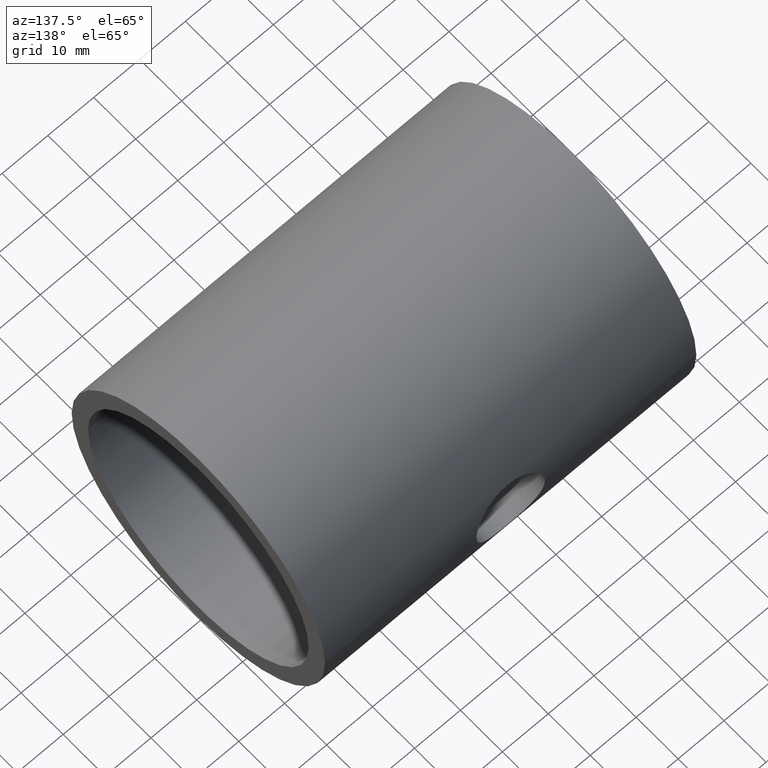
[diagram: clean part render]
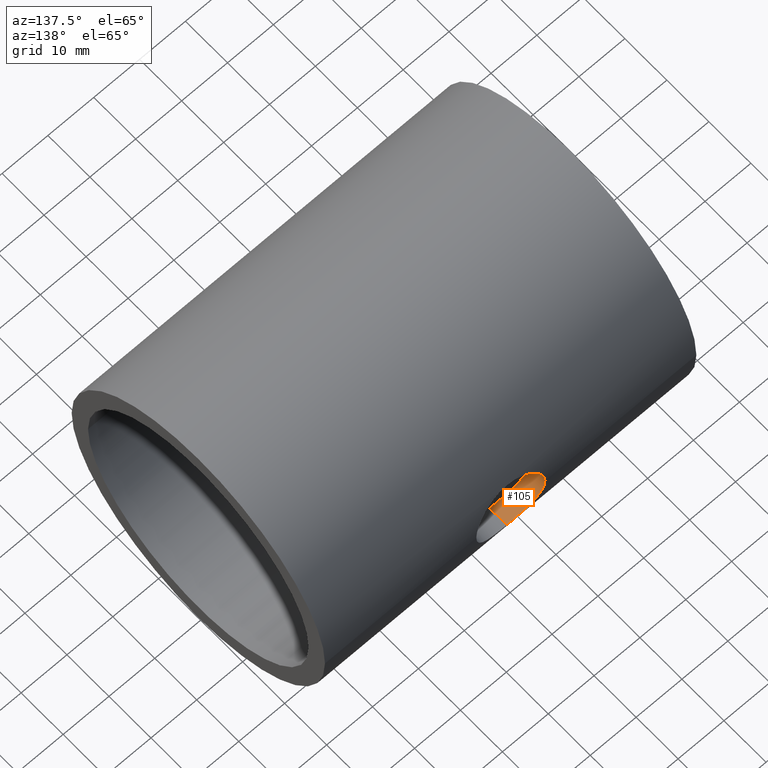
[diagram: same view with one face highlighted and labeled with its STEP entity id]
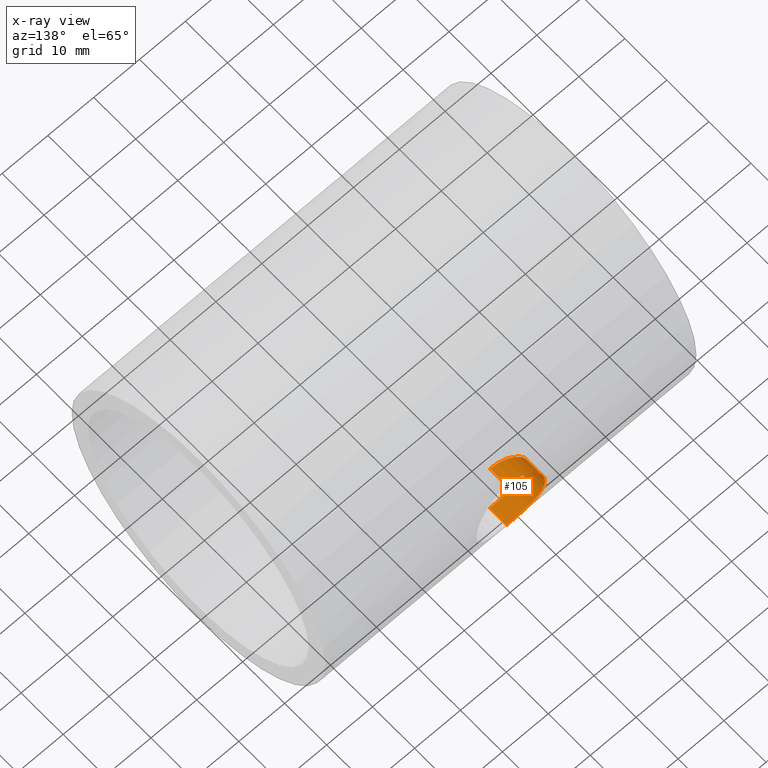
[diagram: x-ray of the same camera — body ghosted, the highlighted face saturated]
A machine part, auxiliary view. The second image highlights one B-rep face of the part: STEP entity #105.
The next image is the same camera in x-ray: the body ghosted, the highlighted face saturated — about 0% of this face is hidden behind the body in this view.
In plain terms, the highlighted cylindrical surface (partial cylindrical patch) has radius 7.5 mm, axis along (0, -1, 0).
Its self-contained STEP definition (entity closure, byte-faithful):
#2 = CARTESIAN_POINT ( 'NONE',  ( -4.579903335156499722, 25.56608613179639633, -5.959639453293601896 ) ) ;
#7 = CARTESIAN_POINT ( 'NONE',  ( -3.758825390325387428, 29.44040599668011282, -6.508684677632751381 ) ) ;
#9 = EDGE_CURVE ( 'NONE', #326, #66, #321, .T. ) ;
#18 = LINE ( 'NONE', #423, #86 ) ;
#22 = CARTESIAN_POINT ( 'NONE',  ( -7.500000000000000000, 30.14999999999999858, 6.235175805712512231E-16 ) ) ;
#24 = CARTESIAN_POINT ( 'NONE',  ( -7.500000000000004441, 30.15000000000000213, 0.4977798491282845461 ) ) ;
#26 = CARTESIAN_POINT ( 'NONE',  ( -7.019421004381487528, 30.03391983532719678, 2.652946144464616740 ) ) ;
#28 = VERTEX_POINT ( 'NONE', #253 ) ;
#31 = CARTESIAN_POINT ( 'NONE',  ( 9.184851921108029881E-16, 25.15576474687263797, 7.500000000000000000 ) ) ;
#32 = B_SPLINE_CURVE_WITH_KNOTS ( 'NONE', 3,
 ( #268, #24, #182, #64, #419, #189, #26, #514, #147, #230, #386, #137, #460, #507, #303, #340, #280, #190, #311, #37, #347, #437, #78, #239 ),
 .UNSPECIFIED., .F., .F.,
 ( 4, 2, 2, 2, 2, 2, 2, 2, 2, 2, 2, 4 ),
 ( 6.055894841786311079E-19, 0.001471713851614921088, 0.002207570777422380656, 0.002943427703229840008, 0.004415141554844758710, 0.005150998480652219796, 0.005886855406459680015, 0.007358569258074600453, 0.008830283109689519155, 0.009566140035496977639, 0.01030199696130443612, 0.01177371081291935309 ),
 .UNSPECIFIED. ) ;
#35 = CARTESIAN_POINT ( 'NONE',  ( -0.4922419818676975201, 25.15576474687263442, 7.499999999999996447 ) ) ;
#36 = CARTESIAN_POINT ( 'NONE',  ( -0.9827970735371619471, 25.17034453724676624, -7.451596438295246649 ) ) ;
#37 = CARTESIAN_POINT ( 'NONE',  ( -1.948475690276917360, 29.26625992275815236, 7.246652333023240189 ) ) ;
#47 = CARTESIAN_POINT ( 'NONE',  ( -4.570604388502558457, 29.55720114824842781, -5.951416819226710508 ) ) ;
#60 = CARTESIAN_POINT ( 'NONE',  ( -6.095169833071157228, 29.83128716922219681, -4.377141417540606483 ) ) ;
#64 = CARTESIAN_POINT ( 'NONE',  ( -7.307030583747838648, 30.10254195543210898, 1.708038133804885339 ) ) ;
#65 = CARTESIAN_POINT ( 'NONE',  ( -7.500000000000002665, 26.25000000000000711, 0.4984821498441855403 ) ) ;
#66 = VERTEX_POINT ( 'NONE', #179 ) ;
#71 = CARTESIAN_POINT ( 'NONE',  ( -3.327989891935563271, 25.37099409258889082, 6.738906710336570072 ) ) ;
#74 = CARTESIAN_POINT ( 'NONE',  ( -5.948072239823869012, 25.84896697505297425, -4.574973492457397484 ) ) ;
#78 = CARTESIAN_POINT ( 'NONE',  ( -0.4914981277863440523, 29.20226874747919510, 7.499999999999998224 ) ) ;
#81 = DIRECTION ( 'NONE',  ( 0.000000000000000000, -1.000000000000000000, 0.000000000000000000 ) ) ;
#85 = CARTESIAN_POINT ( 'NONE',  ( -1.945518420329401588, 29.26305329673580502, -7.259888212938143681 ) ) ;
#86 = VECTOR ( 'NONE', #470, 1000.000000000000000 ) ;
#89 = CARTESIAN_POINT ( 'NONE',  ( -2.709782837249907731E-15, 29.20226874747919510, -7.500000000000001776 ) ) ;
#93 = CARTESIAN_POINT ( 'NONE',  ( -7.500000000000000000, 26.25000000000000000, -2.472637286832563698E-17 ) ) ;
#105 = ADVANCED_FACE ( 'NONE', ( #372 ), #446, .F. ) ;
#113 = ORIENTED_EDGE ( 'NONE', *, *, #135, .T. ) ;
#115 = CARTESIAN_POINT ( 'NONE',  ( -2.651657080710897230, 25.29414193850076131, 7.019851125143388160 ) ) ;
#117 = CARTESIAN_POINT ( 'NONE',  ( -0.9808088379908341814, 25.17022427966362486, 7.452009104841418541 ) ) ;
#119 = CARTESIAN_POINT ( 'NONE',  ( -7.018475470088969104, 26.11633987092977449, 2.655443974424664066 ) ) ;
#120 = ORIENTED_EDGE ( 'NONE', *, *, #158, .F. ) ;
#123 = VECTOR ( 'NONE', #81, 1000.000000000000000 ) ;
#124 = LINE ( 'NONE', #284, #123 ) ;
#131 = DIRECTION ( 'NONE',  ( 0.000000000000000000, 0.000000000000000000, -1.000000000000000000 ) ) ;
#135 = EDGE_CURVE ( 'NONE', #28, #315, #517, .T. ) ;
#136 = ORIENTED_EDGE ( 'NONE', *, *, #272, .F. ) ;
#137 = CARTESIAN_POINT ( 'NONE',  ( -5.637319221159425631, 29.74102230381066647, 4.952887269354030231 ) ) ;
#147 = CARTESIAN_POINT ( 'NONE',  ( -6.505634617147438625, 29.91696588354454533, 3.763845714519531871 ) ) ;
#151 = CARTESIAN_POINT ( 'NONE',  ( -1.950174968047167612, 25.23015299990416338, 7.246202063215121392 ) ) ;
#154 = CARTESIAN_POINT ( 'NONE',  ( -4.579823838683608983, 25.56606953501224311, 5.959714509959599837 ) ) ;
#155 = CARTESIAN_POINT ( 'NONE',  ( -2.421181315831954617, 25.27091214638346983, -7.102753916822598157 ) ) ;
#158 = EDGE_CURVE ( 'NONE', #28, #326, #18, .T. ) ;
#160 = ORIENTED_EDGE ( 'NONE', *, *, #427, .T. ) ;
#161 = CARTESIAN_POINT ( 'NONE',  ( -5.472392848530915899, 25.74356638495870797, 5.134404946341746268 ) ) ;
#163 = CARTESIAN_POINT ( 'NONE',  ( -7.257774706203148796, 26.18165786326593292, -1.953695245823923399 ) ) ;
#165 = CARTESIAN_POINT ( 'NONE',  ( -6.095777443094966053, 25.88345997311688151, -4.376244098658888859 ) ) ;
#179 = CARTESIAN_POINT ( 'NONE',  ( -7.500000000000000000, 26.25000000000000000, -2.472637286832563698E-17 ) ) ;
#180 = CARTESIAN_POINT ( 'NONE',  ( -0.4945814229491364289, 29.20226874747919155, -7.500000000000000000 ) ) ;
#182 = CARTESIAN_POINT ( 'NONE',  ( -7.450937842631350172, 30.13768935472081267, 0.9868566961194560339 ) ) ;
#183 = AXIS2_PLACEMENT_3D ( 'NONE', #458, #449, #131 ) ;
#189 = CARTESIAN_POINT ( 'NONE',  ( -7.103575669927350233, 30.05375883820808980, 2.418709507118506519 ) ) ;
#190 = CARTESIAN_POINT ( 'NONE',  ( -2.649571510705720723, 29.32136355497509683, 7.020640179147966897 ) ) ;
#192 = CARTESIAN_POINT ( 'NONE',  ( -1.708101661654081838, 25.21252738946488492, 7.307085269263294158 ) ) ;
#197 = CARTESIAN_POINT ( 'NONE',  ( -6.735174713920692113, 26.04115818748732636, 3.336007205501596573 ) ) ;
#198 = CARTESIAN_POINT ( 'NONE',  ( -2.652376838847326557, 25.29421346542874005, -7.019596699871498480 ) ) ;
#201 = CARTESIAN_POINT ( 'NONE',  ( -7.111477267143985870, 26.14101493566436929, -2.432393457438694728 ) ) ;
#204 = CARTESIAN_POINT ( 'NONE',  ( -0.4943570307307177392, 25.15576474687263797, -7.499999999999995559 ) ) ;
#211 = CARTESIAN_POINT ( 'NONE',  ( -4.948539832694137885, 29.61799726040874603, -5.641076152350087192 ) ) ;
#217 = CARTESIAN_POINT ( 'NONE',  ( 9.184851921108029881E-16, 25.15576474687263797, 7.500000000000000000 ) ) ;
#220 = CARTESIAN_POINT ( 'NONE',  ( -7.500000000000002665, 30.15000000000000924, -0.4974136404906663866 ) ) ;
#225 = CARTESIAN_POINT ( 'NONE',  ( -7.450995790178253309, 30.13770158883242800, -0.9876561040943162562 ) ) ;
#230 = CARTESIAN_POINT ( 'NONE',  ( -6.097133101349402118, 29.83169117787166869, 4.374348183222612541 ) ) ;
#239 = CARTESIAN_POINT ( 'NONE',  ( 9.184852138581204232E-16, 29.20226874747919510, 7.500000000000000000 ) ) ;
#240 = CARTESIAN_POINT ( 'NONE',  ( -6.504666169006426024, 25.98178539182808677, -3.765551515641766489 ) ) ;
#242 = CARTESIAN_POINT ( 'NONE',  ( -3.760778865241900970, 25.43211951867764498, -6.507638534782119955 ) ) ;
#243 = VERTEX_POINT ( 'NONE', #426 ) ;
#247 = CARTESIAN_POINT ( 'NONE',  ( -2.424035186337260228, 29.29924850759149280, -7.114334325466603381 ) ) ;
#253 = CARTESIAN_POINT ( 'NONE',  ( -2.709782837249907731E-15, 29.20226874747919510, -7.500000000000001776 ) ) ;
#260 = CARTESIAN_POINT ( 'NONE',  ( -6.505593367890553758, 29.91694570946075515, -3.764187038947270914 ) ) ;
#261 = CARTESIAN_POINT ( 'NONE',  ( -6.735889782773024415, 29.96850493715256647, -3.334172780592237206 ) ) ;
#266 = EDGE_CURVE ( 'NONE', #315, #243, #32, .T. ) ;
#268 = CARTESIAN_POINT ( 'NONE',  ( -7.500000000000000000, 30.14999999999999858, 6.235175805712512231E-16 ) ) ;
#272 = EDGE_CURVE ( 'NONE', #66, #499, #379, .T. ) ;
#273 = CARTESIAN_POINT ( 'NONE',  ( -3.760398422462146506, 25.43206089508599632, 6.507871167896754905 ) ) ;
#274 = CARTESIAN_POINT ( 'NONE',  ( -1.947735837013394811, 25.22995355994306976, -7.246899838985373599 ) ) ;
#275 = CARTESIAN_POINT ( 'NONE',  ( -2.421249021666196377, 25.27092963896449618, 7.102688217993333275 ) ) ;
#278 = CARTESIAN_POINT ( 'NONE',  ( -6.095874634240917800, 25.88348345119200999, 4.376096670775003084 ) ) ;
#279 = CARTESIAN_POINT ( 'NONE',  ( -5.473215141363364289, 25.74374231748057440, -5.133518889159716991 ) ) ;
#280 = CARTESIAN_POINT ( 'NONE',  ( -3.326114416452000899, 29.38765154349772502, 6.739839297068670021 ) ) ;
#282 = ORIENTED_EDGE ( 'NONE', *, *, #266, .T. ) ;
#284 = CARTESIAN_POINT ( 'NONE',  ( 9.184850993605147944E-16, 30.15000000000001279, 7.500000000000000000 ) ) ;
#294 = CARTESIAN_POINT ( 'NONE',  ( -3.328353066352716549, 29.38788782235466357, -6.738825219933660904 ) ) ;
#303 = CARTESIAN_POINT ( 'NONE',  ( -4.579325986222701594, 29.55635505909321026, 5.960105699942596758 ) ) ;
#307 = CARTESIAN_POINT ( 'NONE',  ( -5.473192700972075997, 29.71026193866455145, -5.133551392847827799 ) ) ;
#309 = CARTESIAN_POINT ( 'NONE',  ( -5.128990588209845214, 29.64878362725915295, -5.477466913732909504 ) ) ;
#311 = CARTESIAN_POINT ( 'NONE',  ( -2.419201632628013687, 29.30136428376927071, 7.103378844747139986 ) ) ;
#315 = VERTEX_POINT ( 'NONE', #397 ) ;
#316 = CARTESIAN_POINT ( 'NONE',  ( -4.955966953346995219, 25.63709451859085675, 5.650237351122170182 ) ) ;
#317 = CARTESIAN_POINT ( 'NONE',  ( -3.330054538670339070, 25.37124929892515368, -6.737959607023729092 ) ) ;
#319 = CARTESIAN_POINT ( 'NONE',  ( -7.450844507436339192, 26.23583424740114367, -0.9885013533440147881 ) ) ;
#321 = B_SPLINE_CURVE_WITH_KNOTS ( 'NONE', 3,
 ( #486, #204, #36, #473, #274, #155, #198, #317, #242, #2, #484, #279, #441, #74, #165, #240, #398, #201, #163, #319, #413, #93 ),
 .UNSPECIFIED., .F., .F.,
 ( 4, 2, 2, 2, 2, 2, 2, 2, 2, 2, 4 ),
 ( 0.03535569033069561884, 0.03682839171228600300, 0.03756474240308119161, 0.03830109309387638716, 0.03977379447546676439, 0.04124649585705714855, 0.04198284654785234410, 0.04271919723864753271, 0.04419189862023791687, 0.04566460000182830103, 0.04713730138341867826 ),
 .UNSPECIFIED. ) ;
#326 = VERTEX_POINT ( 'NONE', #354 ) ;
#340 = CARTESIAN_POINT ( 'NONE',  ( -3.759673113302224756, 29.44049999252692018, 6.508298128058910059 ) ) ;
#343 = CARTESIAN_POINT ( 'NONE',  ( -7.111665646447423939, 30.05519697605279461, -2.431693037710095595 ) ) ;
#347 = CARTESIAN_POINT ( 'NONE',  ( -1.706680834759862098, 29.25109693381486409, 7.307414262249330328 ) ) ;
#352 = CARTESIAN_POINT ( 'NONE',  ( -7.500000000000000000, 26.25000000000000000, -2.472637286832563698E-17 ) ) ;
#354 = CARTESIAN_POINT ( 'NONE',  ( -8.321471083483726222E-14, 25.15576474687262731, -7.500000000000054179 ) ) ;
#358 = CARTESIAN_POINT ( 'NONE',  ( -7.102726071837865973, 26.13917417762349871, 2.421224650953273994 ) ) ;
#359 = ORIENTED_EDGE ( 'NONE', *, *, #9, .F. ) ;
#372 = FACE_OUTER_BOUND ( 'NONE', #392, .T. ) ;
#379 = B_SPLINE_CURVE_WITH_KNOTS ( 'NONE', 3,
 ( #352, #65, #521, #485, #516, #358, #119, #197, #440, #278, #472, #524, #161, #316, #154, #273, #71, #115, #275, #151, #192, #117, #35, #31 ),
 .UNSPECIFIED., .F., .F.,
 ( 4, 2, 2, 2, 2, 2, 2, 2, 2, 2, 2, 4 ),
 ( 2.401109424688869196E-20, 0.001473657759422297361, 0.002210486639133445608, 0.002947315518844594289, 0.004420973278266892084, 0.005157802157978041632, 0.005894631037689191180, 0.007368288797111485940, 0.008841946556533780699, 0.009578775436244926778, 0.01031560431595607459, 0.01178926207537836848 ),
 .UNSPECIFIED. ) ;
#383 = CARTESIAN_POINT ( 'NONE',  ( -7.257727571318580040, 30.09050229377596253, -1.954019791540228645 ) ) ;
#386 = CARTESIAN_POINT ( 'NONE',  ( -5.949624851526785996, 29.80179651545214625, 4.573010434087986020 ) ) ;
#392 = EDGE_LOOP ( 'NONE', ( #282, #160, #136, #359, #120, #113 ) ) ;
#397 = CARTESIAN_POINT ( 'NONE',  ( -7.500000000000000000, 30.14999999999999858, 6.235175805712512231E-16 ) ) ;
#398 = CARTESIAN_POINT ( 'NONE',  ( -6.734953416780440349, 26.04110501633378760, -3.336172856237178852 ) ) ;
#410 = CARTESIAN_POINT ( 'NONE',  ( -4.371990682114887505, 29.52703611536552941, -6.098863304948894282 ) ) ;
#413 = CARTESIAN_POINT ( 'NONE',  ( -7.500000000000002665, 26.25000000000001066, -0.4981586437419930347 ) ) ;
#419 = CARTESIAN_POINT ( 'NONE',  ( -7.247253648970237272, 30.08804278213023764, 1.946344657478941587 ) ) ;
#421 = CARTESIAN_POINT ( 'NONE',  ( -5.947569797258573487, 29.80139052933342469, -4.575607948172633499 ) ) ;
#423 = CARTESIAN_POINT ( 'NONE',  ( 0.000000000000000000, 30.15000000000001279, -7.500000000000000000 ) ) ;
#426 = CARTESIAN_POINT ( 'NONE',  ( 9.184852138581204232E-16, 29.20226874747919510, 7.500000000000000000 ) ) ;
#427 = EDGE_CURVE ( 'NONE', #243, #499, #124, .T. ) ;
#437 = CARTESIAN_POINT ( 'NONE',  ( -0.9796219613600889442, 29.21468481134047224, 7.452153480724028611 ) ) ;
#440 = CARTESIAN_POINT ( 'NONE',  ( -6.504407235292181788, 25.98172291303094639, 3.765942781147678442 ) ) ;
#441 = CARTESIAN_POINT ( 'NONE',  ( -5.637024880960940898, 25.77916949429884497, -4.953170330028883406 ) ) ;
#446 = CYLINDRICAL_SURFACE ( 'NONE', #183, 7.500000000000000000 ) ;
#449 = DIRECTION ( 'NONE',  ( 0.000000000000000000, -1.000000000000000000, 0.000000000000000000 ) ) ;
#458 = CARTESIAN_POINT ( 'NONE',  ( 0.000000000000000000, 30.15000000000001279, 0.000000000000000000 ) ) ;
#460 = CARTESIAN_POINT ( 'NONE',  ( -5.472965854307600964, 29.71021865610426715, 5.133809976899567751 ) ) ;
#470 = DIRECTION ( 'NONE',  ( 0.000000000000000000, -1.000000000000000000, 0.000000000000000000 ) ) ;
#472 = CARTESIAN_POINT ( 'NONE',  ( -5.948343698780419686, 25.84902718059208127, 4.574653448903553077 ) ) ;
#473 = CARTESIAN_POINT ( 'NONE',  ( -1.706745254172269632, 25.21244618976168184, -7.307363787926693277 ) ) ;
#484 = CARTESIAN_POINT ( 'NONE',  ( -4.957311378008077973, 25.63735895522961883, -5.649023329524049508 ) ) ;
#485 = CARTESIAN_POINT ( 'NONE',  ( -7.306580559343885284, 26.19535245757309383, 1.709997413816759515 ) ) ;
#486 = CARTESIAN_POINT ( 'NONE',  ( -8.321471083483726222E-14, 25.15576474687262731, -7.500000000000054179 ) ) ;
#488 = CARTESIAN_POINT ( 'NONE',  ( -0.9825336582815805686, 29.21483559278428999, -7.451553287640302337 ) ) ;
#499 = VERTEX_POINT ( 'NONE', #217 ) ;
#507 = CARTESIAN_POINT ( 'NONE',  ( -4.955865628270547774, 29.61786713336918808, 5.650383735627918291 ) ) ;
#510 = CARTESIAN_POINT ( 'NONE',  ( -5.636943893866860122, 29.74095538901171309, -4.953245211579987206 ) ) ;
#514 = CARTESIAN_POINT ( 'NONE',  ( -6.736327455849616008, 29.96859832132401991, 3.333687198327586643 ) ) ;
#516 = CARTESIAN_POINT ( 'NONE',  ( -7.246680038039598593, 26.17865696727574587, 1.948505809133644684 ) ) ;
#517 = B_SPLINE_CURVE_WITH_KNOTS ( 'NONE', 3,
 ( #89, #180, #488, #85, #247, #294, #7, #410, #47, #211, #309, #307, #510, #421, #60, #260, #261, #343, #383, #225, #220, #22 ),
 .UNSPECIFIED., .F., .F.,
 ( 4, 2, 2, 2, 2, 2, 2, 2, 2, 2, 4 ),
 ( 0.03531092412817024573, 0.03678155526354924543, 0.03825218639892824513, 0.03972281753430724482, 0.04045813310199674467, 0.04119344866968624452, 0.04192876423737574437, 0.04266407980506524422, 0.04413471094044424392, 0.04560534207582323668, 0.04707597321120223638 ),
 .UNSPECIFIED. ) ;
#521 = CARTESIAN_POINT ( 'NONE',  ( -7.450801712308027902, 26.23582340581914352, 0.9881276970289141204 ) ) ;
#524 = CARTESIAN_POINT ( 'NONE',  ( -5.636506284883211926, 25.77905383298028497, 4.953790855179288855 ) ) ;